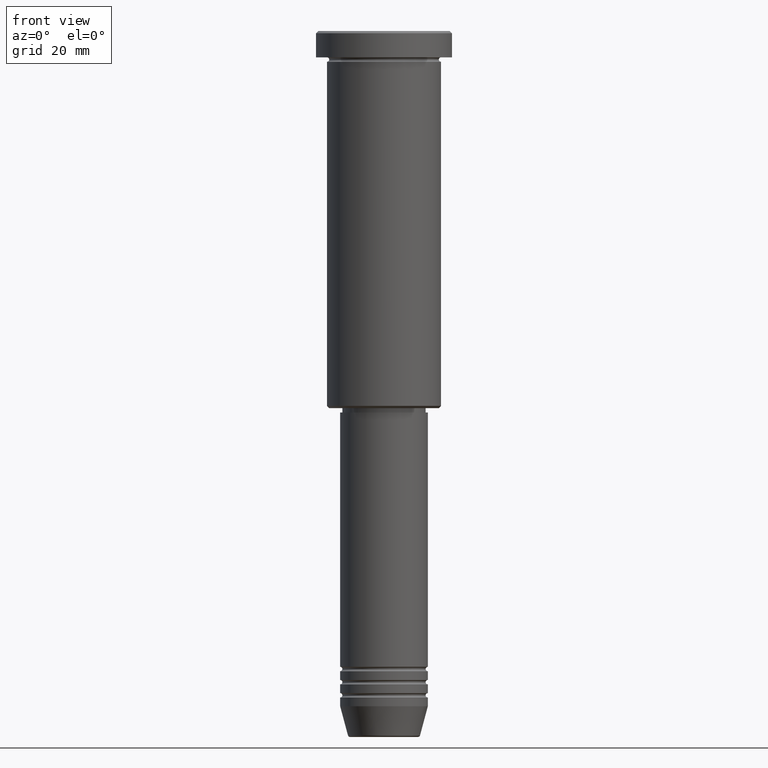
[diagram: clean part render]
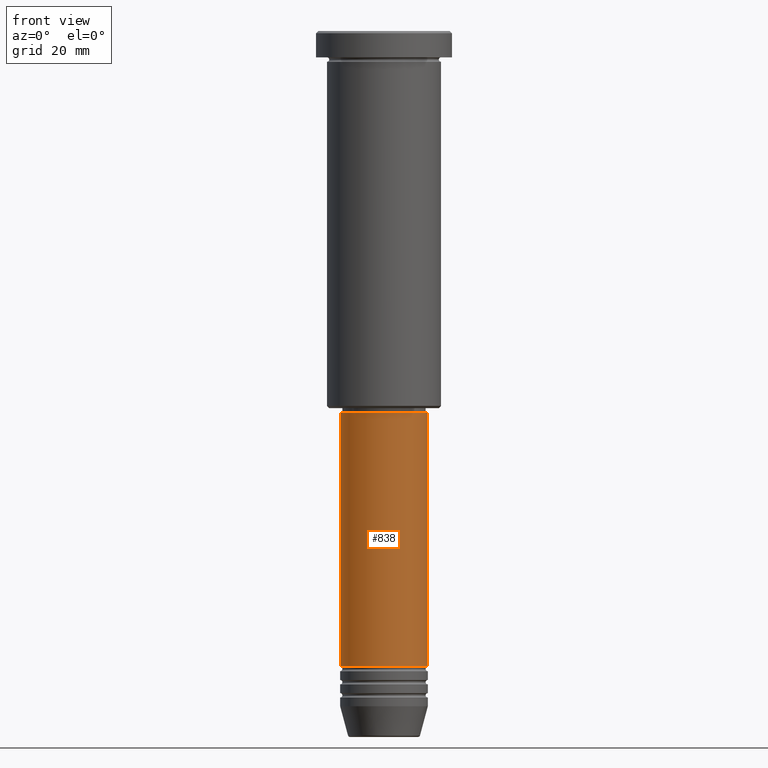
[diagram: same view with one face highlighted and labeled with its STEP entity id]
A machine part, front view. The second image highlights one B-rep face of the part: STEP entity #838.
In plain terms, the highlighted cylindrical surface (partial cylindrical patch) has radius 10 mm, axis along (-0, -0, 1).
Its self-contained STEP definition (entity closure, byte-faithful):
#40 = LINE ( 'NONE', #136, #866 ) ;
#46 = VERTEX_POINT ( 'NONE', #1040 ) ;
#97 = DIRECTION ( 'NONE',  ( 1.000000000000000000, 0.000000000000000000, 0.000000000000000000 ) ) ;
#136 = CARTESIAN_POINT ( 'NONE',  ( 10.00000000000000000, 0.000000000000000000, 0.000000000000000000 ) ) ;
#163 = ORIENTED_EDGE ( 'NONE', *, *, #697, .F. ) ;
#165 = AXIS2_PLACEMENT_3D ( 'NONE', #620, #710, #807 ) ;
#179 = VERTEX_POINT ( 'NONE', #640 ) ;
#197 = DIRECTION ( 'NONE',  ( -0.000000000000000000, -0.000000000000000000, 1.000000000000000000 ) ) ;
#235 = CARTESIAN_POINT ( 'NONE',  ( 0.000000000000000000, 0.000000000000000000, 0.000000000000000000 ) ) ;
#254 = ORIENTED_EDGE ( 'NONE', *, *, #588, .T. ) ;
#277 = EDGE_CURVE ( 'NONE', #377, #335, #1019, .T. ) ;
#335 = VERTEX_POINT ( 'NONE', #936 ) ;
#370 = CIRCLE ( 'NONE', #1064, 10.00000000000000000 ) ;
#377 = VERTEX_POINT ( 'NONE', #734 ) ;
#492 = FACE_OUTER_BOUND ( 'NONE', #1124, .T. ) ;
#494 = AXIS2_PLACEMENT_3D ( 'NONE', #235, #855, #1038 ) ;
#511 = CYLINDRICAL_SURFACE ( 'NONE', #494, 10.00000000000000000 ) ;
#560 = ORIENTED_EDGE ( 'NONE', *, *, #871, .T. ) ;
#561 = CARTESIAN_POINT ( 'NONE',  ( -10.00000000000000000, 1.224646799147353256E-15, 0.000000000000000000 ) ) ;
#566 = DIRECTION ( 'NONE',  ( -0.000000000000000000, -0.000000000000000000, 1.000000000000000000 ) ) ;
#588 = EDGE_CURVE ( 'NONE', #377, #46, #763, .T. ) ;
#620 = CARTESIAN_POINT ( 'NONE',  ( 0.000000000000000000, 0.000000000000000000, -144.9999999999999716 ) ) ;
#640 = CARTESIAN_POINT ( 'NONE',  ( 10.00000000000000000, 0.000000000000000000, -87.00000000000000000 ) ) ;
#645 = VECTOR ( 'NONE', #197, 1000.000000000000000 ) ;
#697 = EDGE_CURVE ( 'NONE', #335, #179, #370, .T. ) ;
#710 = DIRECTION ( 'NONE',  ( -0.000000000000000000, -0.000000000000000000, 1.000000000000000000 ) ) ;
#734 = CARTESIAN_POINT ( 'NONE',  ( -10.00000000000000000, 1.224646799147353256E-15, -144.9999999999999716 ) ) ;
#763 = CIRCLE ( 'NONE', #165, 10.00000000000000000 ) ;
#807 = DIRECTION ( 'NONE',  ( 1.000000000000000000, 0.000000000000000000, 0.000000000000000000 ) ) ;
#838 = ADVANCED_FACE ( 'NONE', ( #492 ), #511, .T. ) ;
#855 = DIRECTION ( 'NONE',  ( -0.000000000000000000, -0.000000000000000000, 1.000000000000000000 ) ) ;
#866 = VECTOR ( 'NONE', #872, 1000.000000000000000 ) ;
#871 = EDGE_CURVE ( 'NONE', #46, #179, #40, .T. ) ;
#872 = DIRECTION ( 'NONE',  ( -0.000000000000000000, -0.000000000000000000, 1.000000000000000000 ) ) ;
#936 = CARTESIAN_POINT ( 'NONE',  ( -10.00000000000000000, 1.224646799147353256E-15, -87.00000000000000000 ) ) ;
#988 = ORIENTED_EDGE ( 'NONE', *, *, #277, .F. ) ;
#1019 = LINE ( 'NONE', #561, #645 ) ;
#1038 = DIRECTION ( 'NONE',  ( 1.000000000000000000, 0.000000000000000000, 0.000000000000000000 ) ) ;
#1040 = CARTESIAN_POINT ( 'NONE',  ( 10.00000000000000000, 0.000000000000000000, -144.9999999999999716 ) ) ;
#1064 = AXIS2_PLACEMENT_3D ( 'NONE', #1114, #566, #97 ) ;
#1114 = CARTESIAN_POINT ( 'NONE',  ( 0.000000000000000000, 0.000000000000000000, -87.00000000000000000 ) ) ;
#1124 = EDGE_LOOP ( 'NONE', ( #988, #254, #560, #163 ) ) ;